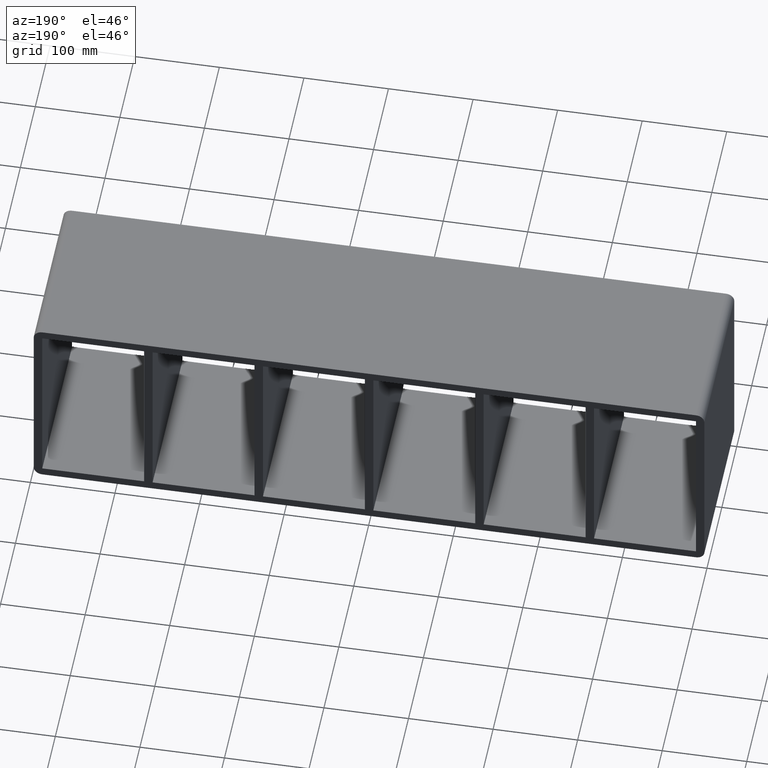
[diagram: clean part render]
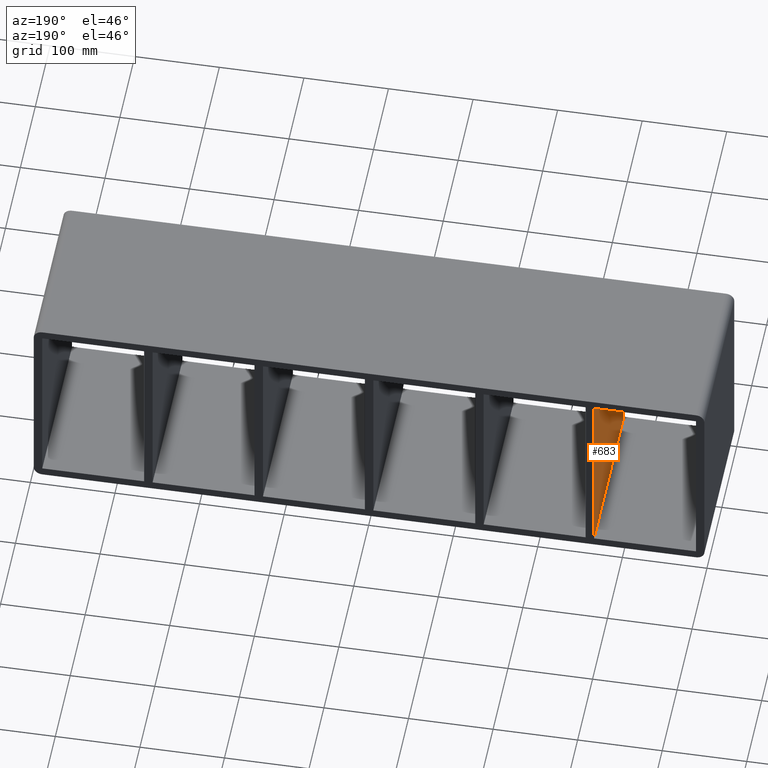
[diagram: same view with one face highlighted and labeled with its STEP entity id]
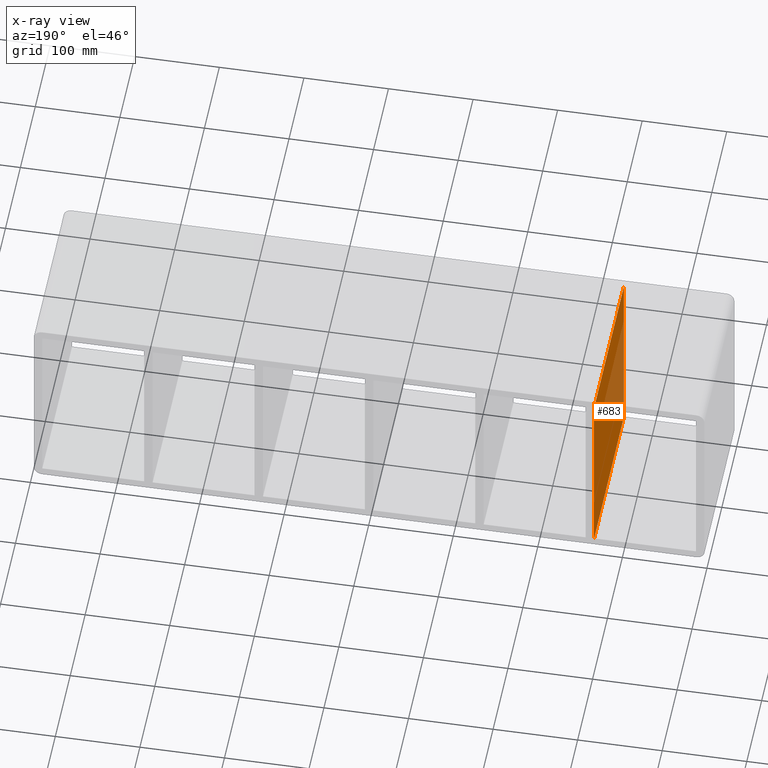
[diagram: x-ray of the same camera — body ghosted, the highlighted face saturated]
A machine part, auxiliary view. The second image highlights one B-rep face of the part: STEP entity #683.
The next image is the same camera in x-ray: the body ghosted, the highlighted face saturated — about 25% of this face is hidden behind the body in this view.
In plain terms, the highlighted planar face has unit normal (-1, 0, 0).
Its self-contained STEP definition (entity closure, byte-faithful):
#644=CARTESIAN_POINT('',(-266.00000000000125,-3.0,-109.0));
#645=DIRECTION('',(-1.0,0.0,0.0));
#646=DIRECTION('',(0.0,0.0,1.0));
#647=AXIS2_PLACEMENT_3D('',#644,#645,#646);
#648=PLANE('',#647);
#649=CARTESIAN_POINT('',(-266.00000000000125,-3.0,-109.0));
#650=VERTEX_POINT('',#649);
#651=CARTESIAN_POINT('',(-266.00000000000131,-3.0,108.99999999999997));
#652=VERTEX_POINT('',#651);
#653=CARTESIAN_POINT('',(-266.00000000000125,-3.0,-109.0));
#654=DIRECTION('',(0.0,0.0,1.0));
#655=VECTOR('',#654,217.99999999999997);
#656=LINE('',#653,#655);
#657=EDGE_CURVE('',#650,#652,#656,.T.);
#658=ORIENTED_EDGE('',*,*,#657,.T.);
#659=CARTESIAN_POINT('',(-266.00000000000131,197.0,108.99999999999997));
#660=VERTEX_POINT('',#659);
#661=CARTESIAN_POINT('',(-266.00000000000131,196.99999999999997,108.99999999999999));
#662=DIRECTION('',(0.0,-1.0,0.0));
#663=VECTOR('',#662,199.99999999999997);
#664=LINE('',#661,#663);
#665=EDGE_CURVE('',#660,#652,#664,.T.);
#666=ORIENTED_EDGE('',*,*,#665,.F.);
#667=CARTESIAN_POINT('',(-266.00000000000125,197.0,-109.0));
#668=VERTEX_POINT('',#667);
#669=CARTESIAN_POINT('',(-266.00000000000125,197.0,-109.0));
#670=DIRECTION('',(0.0,0.0,1.0));
#671=VECTOR('',#670,217.99999999999997);
#672=LINE('',#669,#671);
#673=EDGE_CURVE('',#668,#660,#672,.T.);
#674=ORIENTED_EDGE('',*,*,#673,.F.);
#675=CARTESIAN_POINT('',(-266.00000000000125,-3.0,-109.0));
#676=DIRECTION('',(0.0,1.0,0.0));
#677=VECTOR('',#676,199.99999999999997);
#678=LINE('',#675,#677);
#679=EDGE_CURVE('',#650,#668,#678,.T.);
#680=ORIENTED_EDGE('',*,*,#679,.F.);
#681=EDGE_LOOP('',(#658,#666,#674,#680));
#682=FACE_OUTER_BOUND('',#681,.T.);
#683=ADVANCED_FACE('',(#682),#648,.T.);